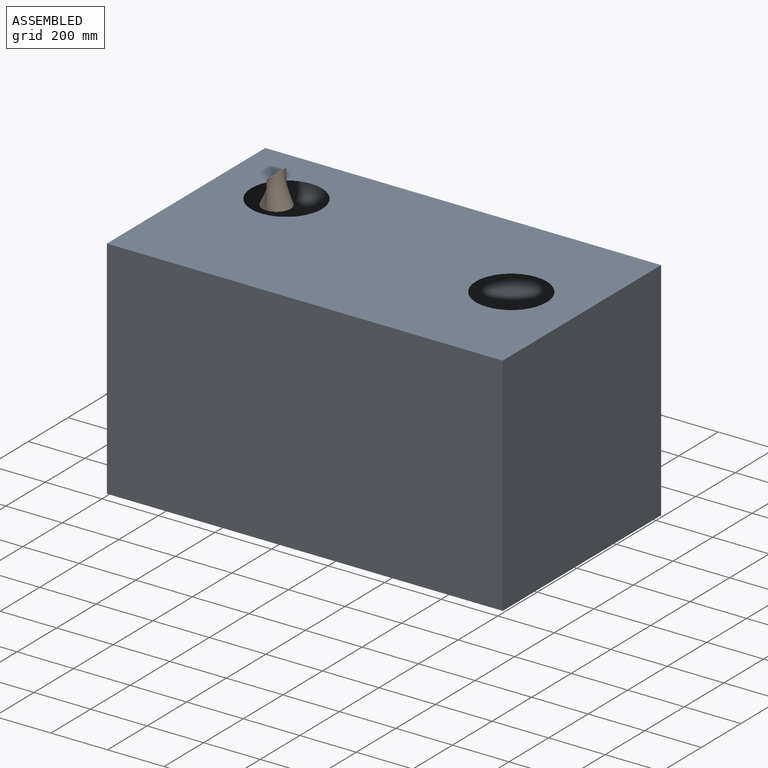
[diagram: assembled view]
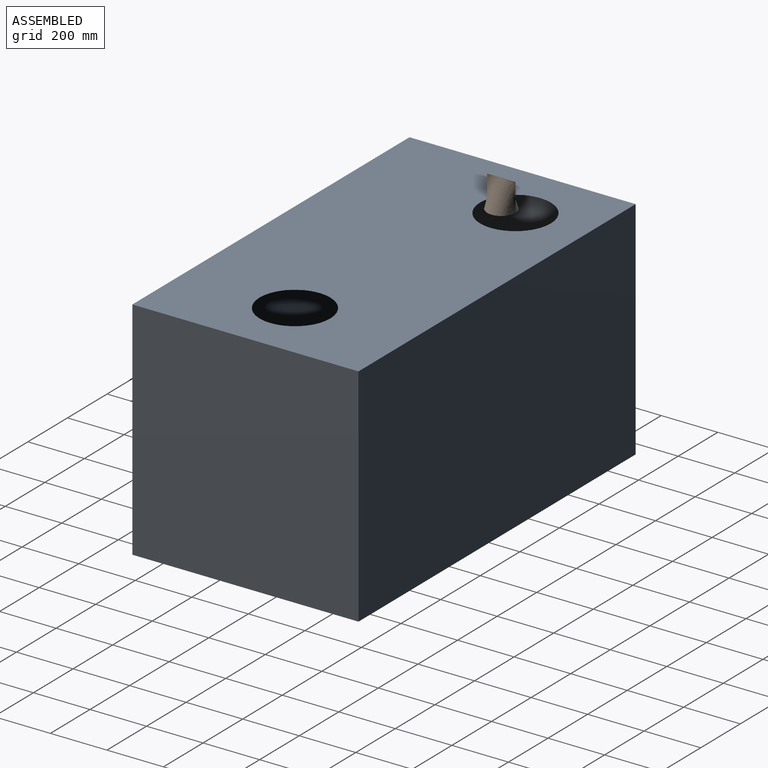
[diagram: assembled view, second angle]
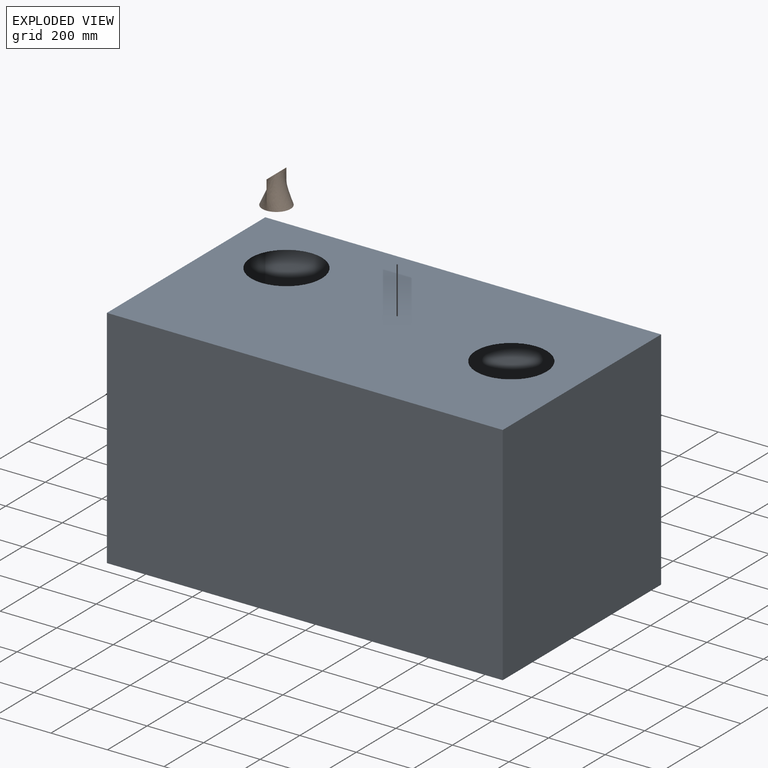
[diagram: exploded view]
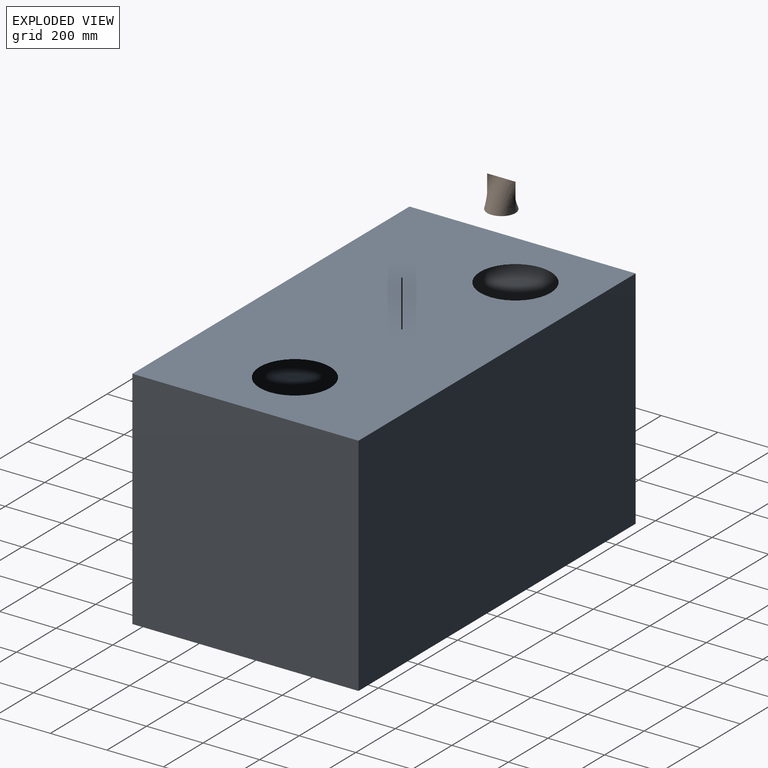
[diagram: exploded view, second angle]
ASSEMBLY  parts=2 mates=2
PART A: 14 faces, bbox 1400x800x800 mm
  f0: plane 799.5x799.5mm, normal (-1,0,0), area 639200.2mm2, adj f1,f3,f4,f5
  f1: plane 1399.5x799.5mm, normal (0,-1,0), area 1118900.2mm2, adj f0,f2,f4,f5
  f2: plane 799.5x799.5mm, normal (1,0,0), area 639200.2mm2, adj f1,f3,f4,f5
  f3: plane 1399.5x799.5mm, normal (0,1,0), area 1118900.2mm2, adj f0,f2,f4,f5
  f4: plane 1399.5x799.5mm, normal (0,0,-1), area 1020725.5mm2, adj f0,f1,f2,f3,f6,f13
  f5: plane 1399.5x799.5mm, normal (0,0,1), area 1118900.3mm2, adj f0,f1,f2,f3
  f6: cylinder r=125mm len=250mm, axis (0,0,1), area 196.3mm2, adj f4,f11
  f7: plane 800x800mm, normal (1,0,0), area 640000mm2, adj f8,f10,f11,f12
  f8: plane 1400x800mm, normal (0,1,0), area 1120000mm2, adj f7,f9,f11,f12
  f9: plane 800x800mm, normal (-1,0,0), area 640000mm2, adj f8,f10,f11,f12
  f10: plane 1400x800mm, normal (0,-1,0), area 1120000mm2, adj f7,f9,f11,f12
  f11: plane 1400x800mm, normal (0,0,1), area 1021825.2mm2, adj f6,f7,f8,f9,f10,f13
  f12: plane 1400x800mm, normal (0,0,-1), area 1120000mm2, adj f7,f8,f9,f10
  f13: cylinder r=125mm len=250mm, axis (0,0,1), area 196.3mm2, adj f4,f11
PART B: 6 faces, bbox 100x100x100 mm
  f0: plane 100x100mm, normal (0,0,-1), area 7853.8mm2, adj f2,f3,f4,f5
  f1: plane 100x0.44mm, normal (0,0,1), area 43.9mm2, adj f2,f3,f4,f5
  f2: bspline ~100x0.44mm, area 43.9mm2, adj f0,f1,f3,f4
  f3: bspline ~100x100mm, area 12699.9mm2, adj f0,f1,f2,f5
  f4: bspline ~100x100mm, area 12699.9mm2, adj f0,f1,f2,f5
  f5: bspline ~100x0.44mm, area 43.9mm2, adj f0,f1,f3,f4
PLACE A t=(-1.39,-1.13,-400.49)mm fixed
PLACE B t=(-451.61,98.62,399.51)mm
MATE revolute A.f6 <-> B.f0  axis (0,0,1) through (-451.39,148.62,399.51)mm
MATE planar A.f11 <-> B.f0  axis (0,0,1) through (-1.39,-8.32,399.51)mm
